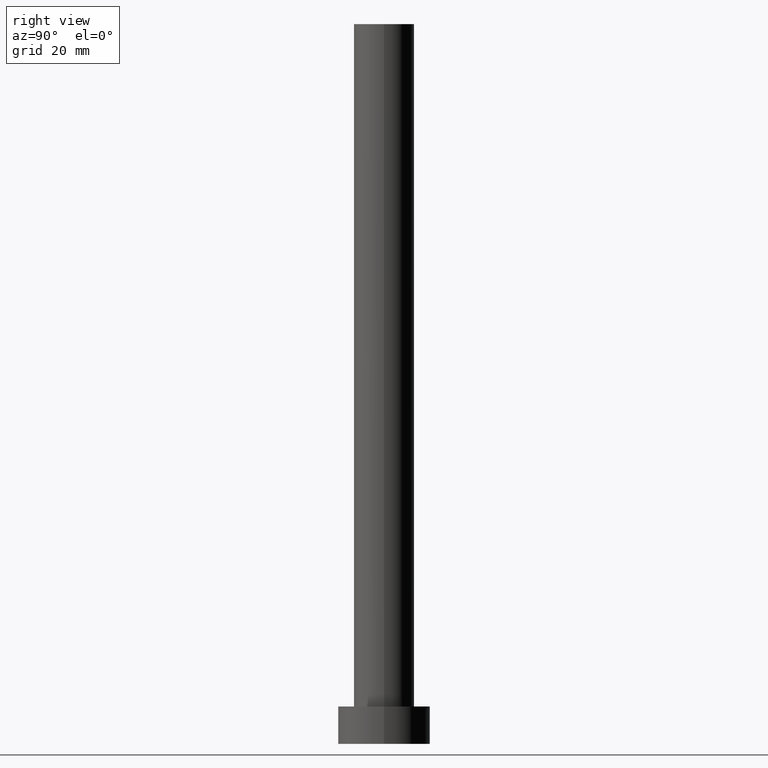
[diagram: clean part render]
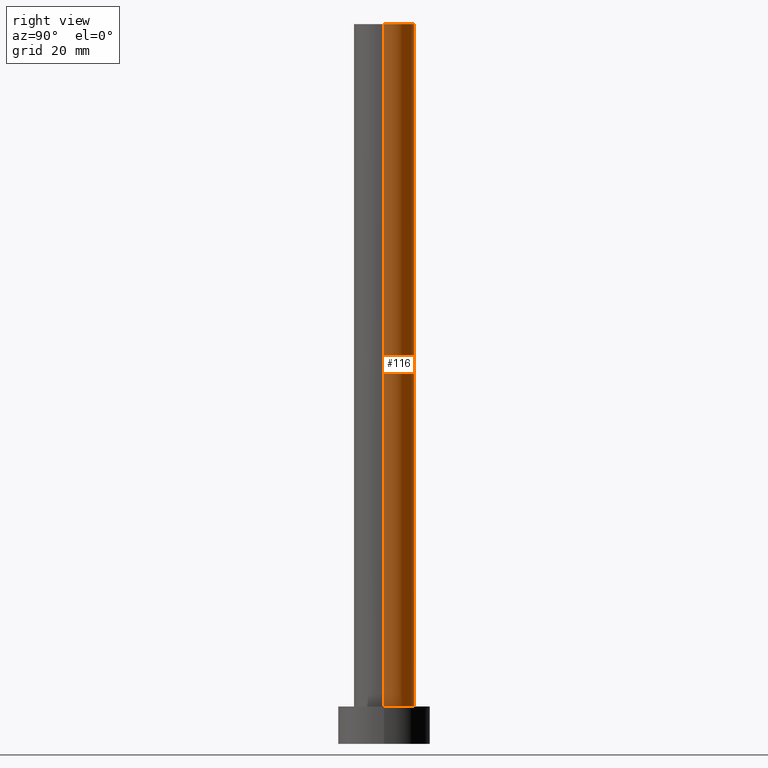
[diagram: same view with one face highlighted and labeled with its STEP entity id]
A machine part, right view. The second image highlights one B-rep face of the part: STEP entity #116.
In plain terms, the highlighted cylindrical surface (edge-blend (fillet) strip) has radius 5.25 mm, axis along (-0, -0, -1).
Its self-contained STEP definition (entity closure, byte-faithful):
#4 = VECTOR ( 'NONE', #113, 1000.000000000000000 ) ;
#12 = CARTESIAN_POINT ( 'NONE',  ( 5.250000000000000888, 6.429395695523605139E-16, 125.0000000000000000 ) ) ;
#13 = DIRECTION ( 'NONE',  ( -0.000000000000000000, -0.000000000000000000, -1.000000000000000000 ) ) ;
#23 = VERTEX_POINT ( 'NONE', #12 ) ;
#27 = VERTEX_POINT ( 'NONE', #130 ) ;
#28 = CYLINDRICAL_SURFACE ( 'NONE', #160, 5.250000000000000888 ) ;
#33 = CARTESIAN_POINT ( 'NONE',  ( -5.250000000000000888, 0.000000000000000000, 125.0000000000000000 ) ) ;
#36 = VECTOR ( 'NONE', #87, 1000.000000000000000 ) ;
#43 = EDGE_CURVE ( 'NONE', #27, #229, #91, .T. ) ;
#64 = AXIS2_PLACEMENT_3D ( 'NONE', #92, #151, #88 ) ;
#76 = CARTESIAN_POINT ( 'NONE',  ( 5.250000000000000888, 6.429395695523605139E-16, 125.0000000000000000 ) ) ;
#87 = DIRECTION ( 'NONE',  ( -0.000000000000000000, -0.000000000000000000, -1.000000000000000000 ) ) ;
#88 = DIRECTION ( 'NONE',  ( 1.000000000000000000, 0.000000000000000000, 0.000000000000000000 ) ) ;
#89 = CIRCLE ( 'NONE', #191, 5.250000000000000888 ) ;
#91 = LINE ( 'NONE', #33, #36 ) ;
#92 = CARTESIAN_POINT ( 'NONE',  ( 0.000000000000000000, 0.000000000000000000, 125.0000000000000000 ) ) ;
#102 = ORIENTED_EDGE ( 'NONE', *, *, #237, .T. ) ;
#107 = CARTESIAN_POINT ( 'NONE',  ( 0.000000000000000000, 0.000000000000000000, 125.0000000000000000 ) ) ;
#113 = DIRECTION ( 'NONE',  ( -0.000000000000000000, -0.000000000000000000, -1.000000000000000000 ) ) ;
#116 = ADVANCED_FACE ( 'NONE', ( #213 ), #28, .T. ) ;
#124 = ORIENTED_EDGE ( 'NONE', *, *, #164, .F. ) ;
#130 = CARTESIAN_POINT ( 'NONE',  ( -5.250000000000000888, 0.000000000000000000, 125.0000000000000000 ) ) ;
#134 = LINE ( 'NONE', #76, #4 ) ;
#146 = EDGE_CURVE ( 'NONE', #23, #247, #134, .T. ) ;
#151 = DIRECTION ( 'NONE',  ( 0.000000000000000000, 0.000000000000000000, 1.000000000000000000 ) ) ;
#157 = CARTESIAN_POINT ( 'NONE',  ( 0.000000000000000000, 0.000000000000000000, 6.500000000000000000 ) ) ;
#160 = AXIS2_PLACEMENT_3D ( 'NONE', #107, #13, #251 ) ;
#164 = EDGE_CURVE ( 'NONE', #23, #27, #206, .T. ) ;
#183 = EDGE_LOOP ( 'NONE', ( #124, #224, #102, #185 ) ) ;
#185 = ORIENTED_EDGE ( 'NONE', *, *, #43, .F. ) ;
#191 = AXIS2_PLACEMENT_3D ( 'NONE', #157, #196, #202 ) ;
#196 = DIRECTION ( 'NONE',  ( 0.000000000000000000, 0.000000000000000000, 1.000000000000000000 ) ) ;
#197 = CARTESIAN_POINT ( 'NONE',  ( 5.250000000000000888, 6.429395695523605139E-16, 6.500000000000000000 ) ) ;
#202 = DIRECTION ( 'NONE',  ( 1.000000000000000000, 0.000000000000000000, 0.000000000000000000 ) ) ;
#206 = CIRCLE ( 'NONE', #64, 5.250000000000000888 ) ;
#213 = FACE_OUTER_BOUND ( 'NONE', #183, .T. ) ;
#220 = CARTESIAN_POINT ( 'NONE',  ( -5.250000000000000888, 0.000000000000000000, 6.500000000000000000 ) ) ;
#224 = ORIENTED_EDGE ( 'NONE', *, *, #146, .T. ) ;
#229 = VERTEX_POINT ( 'NONE', #220 ) ;
#237 = EDGE_CURVE ( 'NONE', #247, #229, #89, .T. ) ;
#247 = VERTEX_POINT ( 'NONE', #197 ) ;
#251 = DIRECTION ( 'NONE',  ( -1.000000000000000000, 0.000000000000000000, 0.000000000000000000 ) ) ;